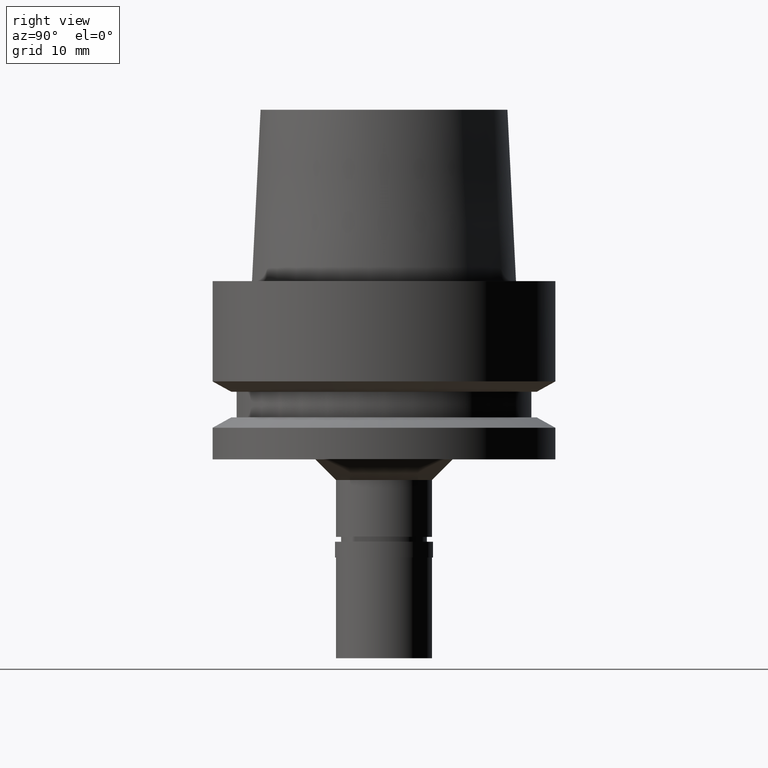
[diagram: clean part render]
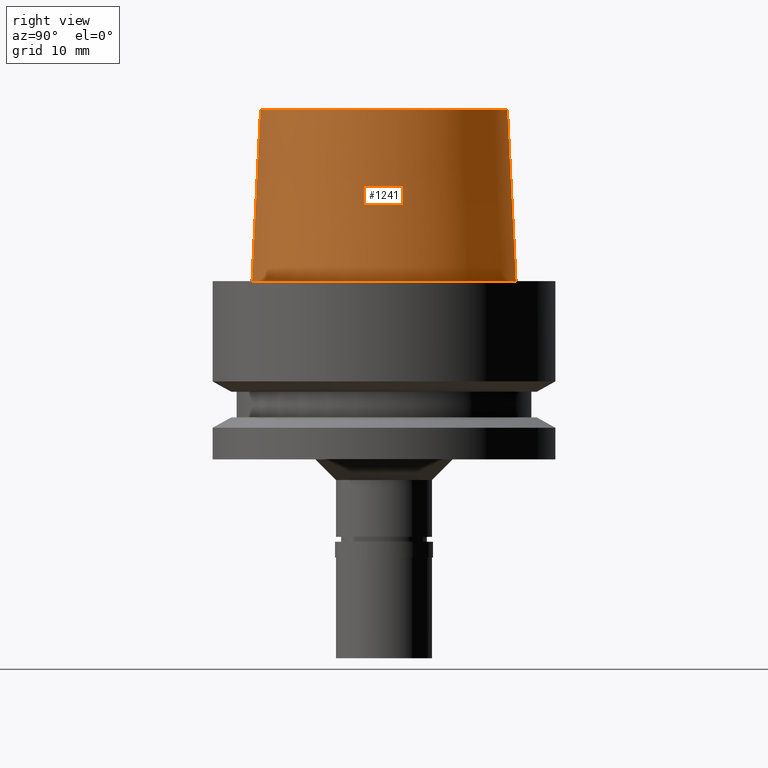
[diagram: same view with one face highlighted and labeled with its STEP entity id]
A machine part, right view. The second image highlights one B-rep face of the part: STEP entity #1241.
In plain terms, the highlighted conical surface has half-angle 2.862 deg.
Its self-contained STEP definition (entity closure, byte-faithful):
#155 = VECTOR ( 'NONE', #2235, 999.9999999999998863 ) ;
#162 = DIRECTION ( 'NONE',  ( 0.0000000000000000000, 1.000000000000000000, 0.0000000000000000000 ) ) ;
#180 = LINE ( 'NONE', #1809, #155 ) ;
#282 = VERTEX_POINT ( 'NONE', #2688 ) ;
#449 = CARTESIAN_POINT ( 'NONE',  ( 0.0000000000000000000, 0.0000000000000000000, 12.50000000000000000 ) ) ;
#465 = FACE_OUTER_BOUND ( 'NONE', #2368, .T. ) ;
#491 = CARTESIAN_POINT ( 'NONE',  ( 0.0000000000000000000, 0.0000000000000000000, 3.979039320256999774E-13 ) ) ;
#700 = AXIS2_PLACEMENT_3D ( 'NONE', #449, #1311, #1526 ) ;
#706 = CIRCLE ( 'NONE', #1377, 18.00000182882000033 ) ;
#797 = CARTESIAN_POINT ( 'NONE',  ( 0.0000000000000000000, 0.0000000000000000000, 25.00000000000000000 ) ) ;
#865 = ORIENTED_EDGE ( 'NONE', *, *, #1444, .T. ) ;
#877 = CARTESIAN_POINT ( 'NONE',  ( 0.0000000000000000000, 18.00000182882000033, 25.00000000000000000 ) ) ;
#924 = VECTOR ( 'NONE', #2363, 999.9999999999998863 ) ;
#1032 = VERTEX_POINT ( 'NONE', #2044 ) ;
#1061 = EDGE_CURVE ( 'NONE', #1360, #1155, #706, .T. ) ;
#1155 = VERTEX_POINT ( 'NONE', #2477 ) ;
#1241 = ADVANCED_FACE ( 'NONE', ( #465 ), #2658, .T. ) ;
#1311 = DIRECTION ( 'NONE',  ( 0.0000000000000000000, 0.0000000000000000000, -1.000000000000000000 ) ) ;
#1339 = DIRECTION ( 'NONE',  ( 0.0000000000000000000, 0.0000000000000000000, 1.000000000000000000 ) ) ;
#1360 = VERTEX_POINT ( 'NONE', #877 ) ;
#1377 = AXIS2_PLACEMENT_3D ( 'NONE', #797, #1434, #162 ) ;
#1434 = DIRECTION ( 'NONE',  ( 0.0000000000000000000, 0.0000000000000000000, -1.000000000000000000 ) ) ;
#1444 = EDGE_CURVE ( 'NONE', #1155, #282, #2584, .T. ) ;
#1456 = EDGE_CURVE ( 'NONE', #282, #1032, #2355, .T. ) ;
#1526 = DIRECTION ( 'NONE',  ( 0.0000000000000000000, -1.000000000000000000, 0.0000000000000000000 ) ) ;
#1537 = CARTESIAN_POINT ( 'NONE',  ( 0.0000000000000000000, -18.00000182882000033, 25.00000000000000000 ) ) ;
#1695 = ORIENTED_EDGE ( 'NONE', *, *, #2502, .F. ) ;
#1809 = CARTESIAN_POINT ( 'NONE',  ( 0.0000000000000000000, 18.00000182882000033, 25.00000000000000000 ) ) ;
#1926 = ORIENTED_EDGE ( 'NONE', *, *, #1456, .T. ) ;
#2014 = AXIS2_PLACEMENT_3D ( 'NONE', #491, #1339, #2157 ) ;
#2044 = CARTESIAN_POINT ( 'NONE',  ( 0.0000000000000000000, 19.24999954280000125, 2.664535259100000578E-13 ) ) ;
#2157 = DIRECTION ( 'NONE',  ( 0.0000000000000000000, -1.000000000000000000, 0.0000000000000000000 ) ) ;
#2235 = DIRECTION ( 'NONE',  ( 0.0000000000000000000, 0.04993752584486958745, -0.9987523434327917338 ) ) ;
#2294 = ORIENTED_EDGE ( 'NONE', *, *, #1061, .T. ) ;
#2355 = CIRCLE ( 'NONE', #2014, 19.24999954280000125 ) ;
#2363 = DIRECTION ( 'NONE',  ( 0.0000000000000000000, -0.04993752584486958745, -0.9987523434327917338 ) ) ;
#2368 = EDGE_LOOP ( 'NONE', ( #2294, #865, #1926, #1695 ) ) ;
#2477 = CARTESIAN_POINT ( 'NONE',  ( 0.0000000000000000000, -18.00000182882000033, 25.00000000000000000 ) ) ;
#2502 = EDGE_CURVE ( 'NONE', #1360, #1032, #180, .T. ) ;
#2584 = LINE ( 'NONE', #1537, #924 ) ;
#2658 = CONICAL_SURFACE ( 'NONE', #700, 18.62500068580999724, 0.04995830450907576964 ) ;
#2688 = CARTESIAN_POINT ( 'NONE',  ( 0.0000000000000000000, -19.24999954280000125, 2.664535259100000578E-13 ) ) ;